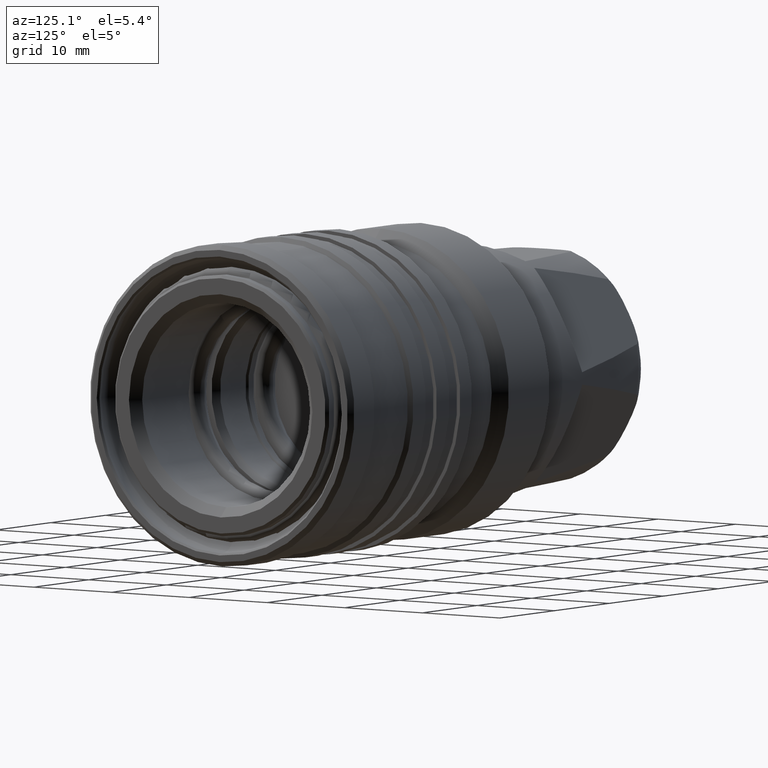
[diagram: clean part render]
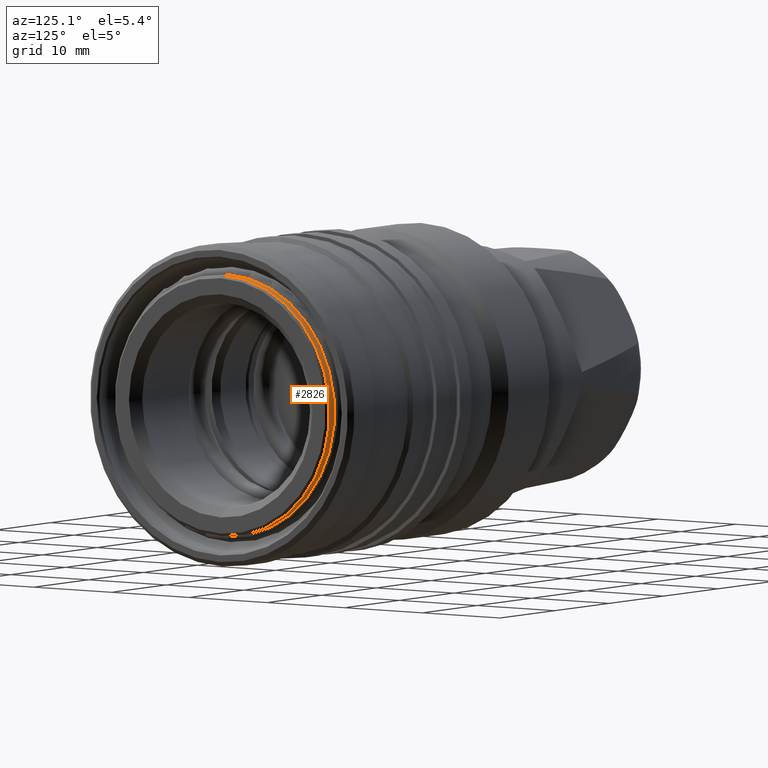
[diagram: same view with one face highlighted and labeled with its STEP entity id]
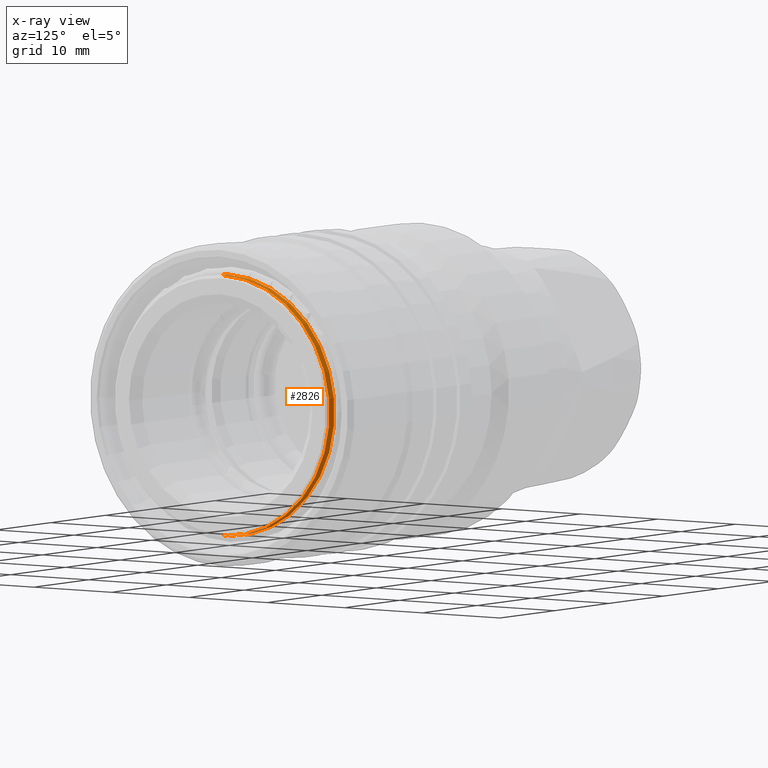
[diagram: x-ray of the same camera — body ghosted, the highlighted face saturated]
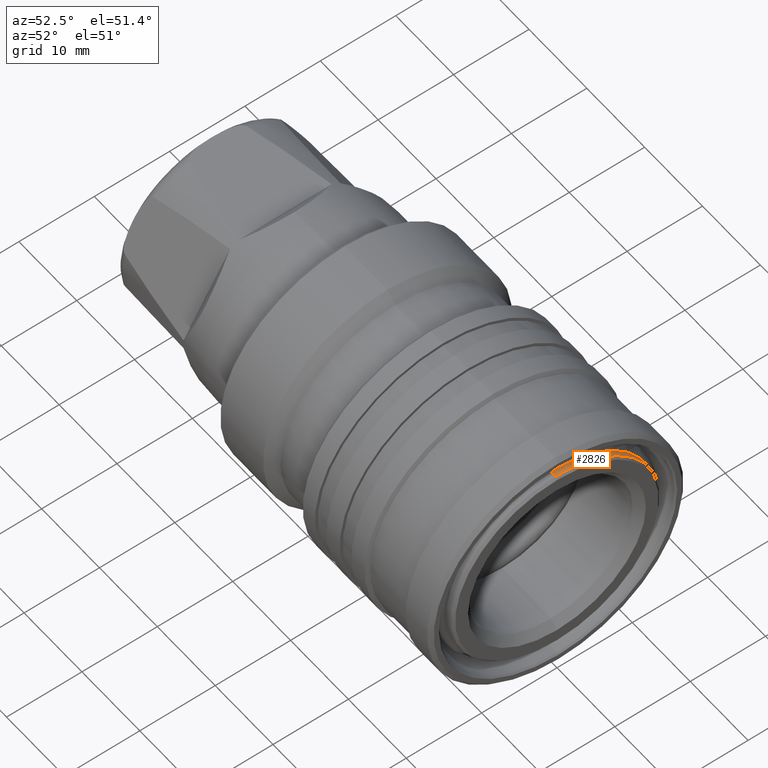
[diagram: same view with one face highlighted and labeled with its STEP entity id]
A machine part, auxiliary view. The second image highlights one B-rep face of the part: STEP entity #2826.
The next image is the same camera in x-ray: the body ghosted, the highlighted face saturated — about 0% of this face is hidden behind the body in this view.
A second angle (auxiliary view) of the same face is appended — the face is thin or edge-on in the first view.
In plain terms, the highlighted cylindrical surface (partial cylindrical patch) has radius 13.8 mm, axis along (-1, 0, 0).
Its self-contained STEP definition (entity closure, byte-faithful):
#309 = AXIS2_PLACEMENT_3D ( 'NONE', #2720, #2719, #2718 ) ;
#499 = AXIS2_PLACEMENT_3D ( 'NONE', #2088, #2087, #2086 ) ;
#503 = AXIS2_PLACEMENT_3D ( 'NONE', #2075, #2074, #2073 ) ;
#935 = EDGE_LOOP ( 'NONE', ( #989, #990, #991, #992 ) ) ;
#989 = ORIENTED_EDGE ( 'NONE', *, *, #4206, .T. ) ;
#990 = ORIENTED_EDGE ( 'NONE', *, *, #4207, .T. ) ;
#991 = ORIENTED_EDGE ( 'NONE', *, *, #4202, .F. ) ;
#992 = ORIENTED_EDGE ( 'NONE', *, *, #4208, .F. ) ;
#1325 = CARTESIAN_POINT ( 'NONE',  ( 59.69999999999279800, 0.0000000000000000000, 13.79999999999934000 ) ) ;
#1783 = VERTEX_POINT ( 'NONE', #1325 ) ;
#1803 = LINE ( 'NONE', #2066, #1836 ) ;
#1809 = CIRCLE ( 'NONE', #503, 13.79999999999934000 ) ;
#1815 = LINE ( 'NONE', #2072, #1897 ) ;
#1836 = VECTOR ( 'NONE', #2065, 1000.000000000000000 ) ;
#1897 = VECTOR ( 'NONE', #2067, 1000.000000000000000 ) ;
#2019 = CIRCLE ( 'NONE', #499, 13.79999999999934000 ) ;
#2065 = DIRECTION ( 'NONE',  ( -1.000000000000000000, 0.0000000000000000000, 0.0000000000000000000 ) ) ;
#2066 = CARTESIAN_POINT ( 'NONE',  ( 76.95419073289978900, 0.0000000000000000000, 13.79999999999934000 ) ) ;
#2067 = DIRECTION ( 'NONE',  ( -1.000000000000000000, 0.0000000000000000000, 0.0000000000000000000 ) ) ;
#2072 = CARTESIAN_POINT ( 'NONE',  ( 76.95419073289978900, 1.690012582823266700E-015, -13.79999999999934000 ) ) ;
#2073 = DIRECTION ( 'NONE',  ( 0.0000000000000000000, 0.0000000000000000000, 1.000000000000000000 ) ) ;
#2074 = DIRECTION ( 'NONE',  ( -1.000000000000000000, 0.0000000000000000000, 0.0000000000000000000 ) ) ;
#2075 = CARTESIAN_POINT ( 'NONE',  ( 59.69999999999279800, 0.0000000000000000000, 0.0000000000000000000 ) ) ;
#2086 = DIRECTION ( 'NONE',  ( 0.0000000000000000000, 0.0000000000000000000, 1.000000000000000000 ) ) ;
#2087 = DIRECTION ( 'NONE',  ( -1.000000000000000000, 0.0000000000000000000, 0.0000000000000000000 ) ) ;
#2088 = CARTESIAN_POINT ( 'NONE',  ( 58.79999999999759600, 0.0000000000000000000, 0.0000000000000000000 ) ) ;
#2269 = CARTESIAN_POINT ( 'NONE',  ( 59.69999999999279800, 1.690012582823266700E-015, -13.79999999999934000 ) ) ;
#2316 = CARTESIAN_POINT ( 'NONE',  ( 58.79999999999759600, 1.690012582823266700E-015, -13.79999999999934000 ) ) ;
#2681 = CARTESIAN_POINT ( 'NONE',  ( 58.79999999999759600, 0.0000000000000000000, 13.79999999999934000 ) ) ;
#2718 = DIRECTION ( 'NONE',  ( 0.0000000000000000000, 0.0000000000000000000, 1.000000000000000000 ) ) ;
#2719 = DIRECTION ( 'NONE',  ( -1.000000000000000000, 0.0000000000000000000, 0.0000000000000000000 ) ) ;
#2720 = CARTESIAN_POINT ( 'NONE',  ( 76.95419073289978900, 0.0000000000000000000, 0.0000000000000000000 ) ) ;
#2826 = ADVANCED_FACE ( 'NONE', ( #3660 ), #3652, .T. ) ;
#3179 = VERTEX_POINT ( 'NONE', #2681 ) ;
#3331 = VERTEX_POINT ( 'NONE', #2316 ) ;
#3353 = VERTEX_POINT ( 'NONE', #2269 ) ;
#3652 = CYLINDRICAL_SURFACE ( 'NONE', #309, 13.79999999999934000 ) ;
#3660 = FACE_OUTER_BOUND ( 'NONE', #935, .T. ) ;
#4202 = EDGE_CURVE ( 'NONE', #3179, #3331, #2019, .T. ) ;
#4206 = EDGE_CURVE ( 'NONE', #1783, #3353, #1809, .T. ) ;
#4207 = EDGE_CURVE ( 'NONE', #3353, #3331, #1815, .T. ) ;
#4208 = EDGE_CURVE ( 'NONE', #1783, #3179, #1803, .T. ) ;